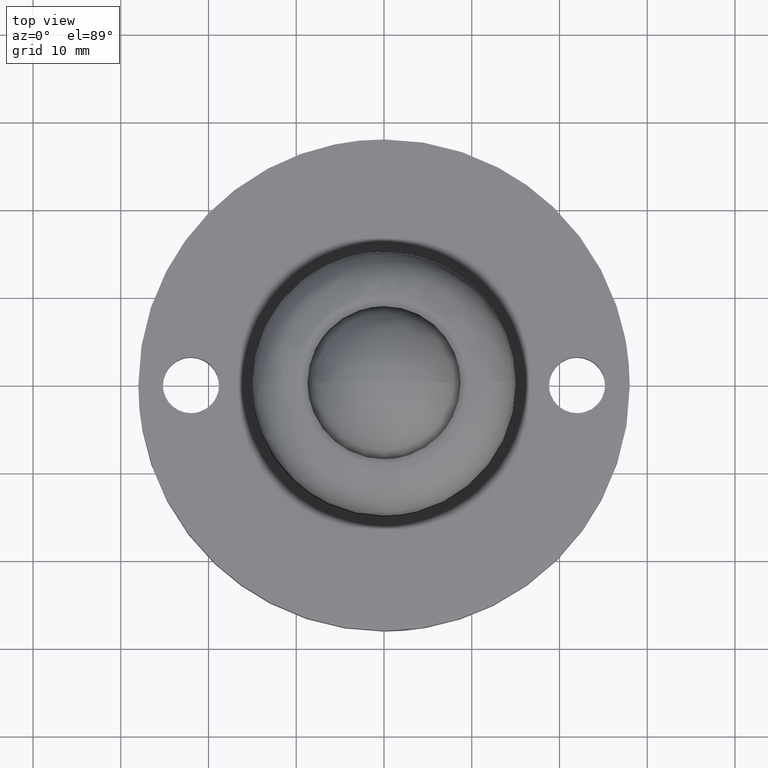
[diagram: clean part render]
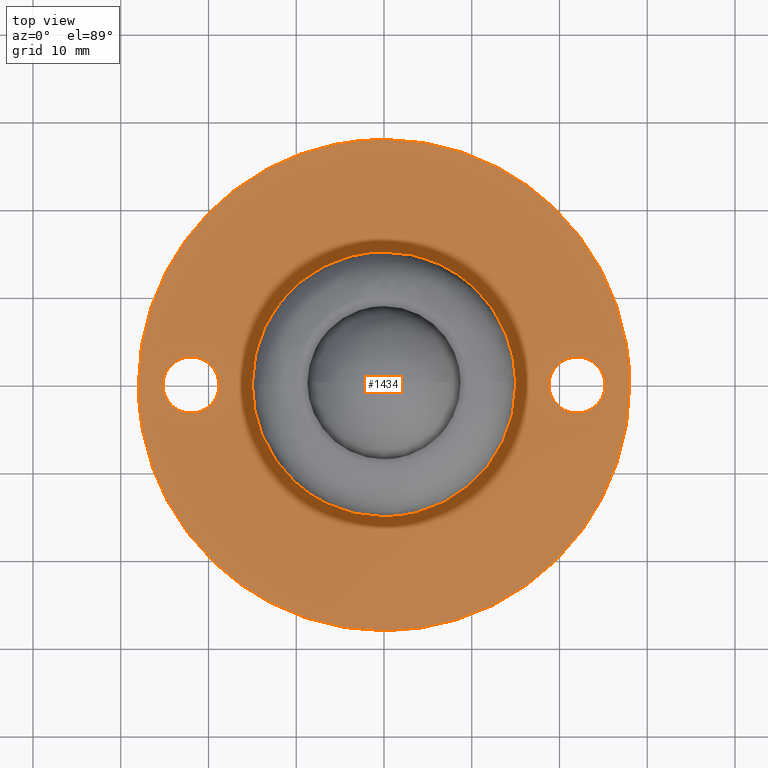
[diagram: same view with one face highlighted and labeled with its STEP entity id]
A machine part, top view. The second image highlights one B-rep face of the part: STEP entity #1434.
In plain terms, the highlighted face is a freeform B-spline surface patch.
Its self-contained STEP definition (entity closure, byte-faithful):
#1031=CARTESIAN_POINT('',(10.187777206663190,11.009504958492119,6.000000000000091));
#1032=VERTEX_POINT('',#1031);
#1038=CARTESIAN_POINT('',(0.000000514032998,14.999999999999689,6.000000000000091));
#1039=VERTEX_POINT('',#1038);
#1040=CARTESIAN_POINT('',(0.000000514032998,14.999999999999689,6.000000000000091));
#1041=CARTESIAN_POINT('',(1.049993559862609,15.000148270109950,6.000000000000098));
#1042=CARTESIAN_POINT('',(2.683226454162662,14.827802878499710,6.000000000000090));
#1043=CARTESIAN_POINT('',(4.711468354141272,14.270011249596291,6.000000000000090));
#1044=CARTESIAN_POINT('',(6.451443818733820,13.588542306655800,6.000000000000137));
#1045=CARTESIAN_POINT('',(8.298799035759691,12.575343320865130,6.000000000000028));
#1046=CARTESIAN_POINT('',(9.588416763761213,11.564200495572170,6.000000000000120));
#1047=CARTESIAN_POINT('',(10.187777206663190,11.009504958492119,6.000000000000091));
#1048=B_SPLINE_CURVE_WITH_KNOTS('',3,(#1040,#1041,#1042,#1043,#1044,#1045,#1046,#1047),.UNSPECIFIED.,.F.,.U.,(4,1,1,1,1,4),(0.000000010242440,3.149943769026443,4.899910382924300,6.299882818494707,8.749840359496206,11.199793191181600),.UNSPECIFIED.);
#1049=EDGE_CURVE('',#1039,#1032,#1048,.T.);
#1051=CARTESIAN_POINT('',(-14.999999999999700,0.0,6.000000000000091));
#1052=VERTEX_POINT('',#1051);
#1053=CARTESIAN_POINT('',(-14.999999999999700,0.0,6.000000000000091));
#1054=CARTESIAN_POINT('',(-15.000096546897820,0.889716477495457,6.000000000000061));
#1055=CARTESIAN_POINT('',(-14.882250914167710,2.208895577811874,6.000000000000136));
#1056=CARTESIAN_POINT('',(-14.438202870833370,4.186382514948534,6.000000000000028));
#1057=CARTESIAN_POINT('',(-13.772032394529759,6.103873490408838,6.000000000000184));
#1058=CARTESIAN_POINT('',(-12.793637921509809,7.920883824401135,6.000000000000008));
#1059=CARTESIAN_POINT('',(-11.655325033743731,9.485472362275043,6.000000000000172));
#1060=CARTESIAN_POINT('',(-10.441851644169031,10.832712208490239,5.999999999999961));
#1061=CARTESIAN_POINT('',(-8.915437344814075,12.125074830185181,6.000000000000152));
#1062=CARTESIAN_POINT('',(-7.093751090324996,13.270838889359720,6.000000000000068));
#1063=CARTESIAN_POINT('',(-5.410942552329037,14.029157939509689,6.000000000000070));
#1064=CARTESIAN_POINT('',(-3.740462036835126,14.552699248653321,6.000000000000110));
#1065=CARTESIAN_POINT('',(-2.024839954780946,14.904923558304850,6.000000000000078));
#1066=CARTESIAN_POINT('',(-0.736309194944582,15.000042318793380,6.000000000000100));
#1067=CARTESIAN_POINT('',(0.000000514032998,14.999999999999689,6.000000000000091));
#1068=B_SPLINE_CURVE_WITH_KNOTS('',3,(#1053,#1054,#1055,#1056,#1057,#1058,#1059,#1060,#1061,#1062,#1063,#1064,#1065,#1066,#1067),.UNSPECIFIED.,.F.,.U.,(4,1,1,1,1,1,1,1,1,1,1,1,4),(0.000000042434699,2.669124016154338,3.957668689044034,6.074574935339655,8.743717676309601,10.124306067827129,11.873004087740471,14.173986027280151,16.106815966073761,18.315760848068251,19.696346942626239,21.353056327259210,23.561982153494270),.UNSPECIFIED.);
#1069=EDGE_CURVE('',#1052,#1039,#1068,.T.);
#1071=CARTESIAN_POINT('',(-10.187777206663080,-11.009504958492011,6.000000000000091));
#1072=VERTEX_POINT('',#1071);
#1073=CARTESIAN_POINT('',(-10.187777206663080,-11.009504958492011,6.000000000000091));
#1074=CARTESIAN_POINT('',(-10.778536760981259,-10.462916927972740,6.000000000000101));
#1075=CARTESIAN_POINT('',(-11.631194055360719,-9.535793906577354,6.000000000000085));
#1076=CARTESIAN_POINT('',(-12.733008748195880,-7.986251307731281,6.000000000000106));
#1077=CARTESIAN_POINT('',(-13.471392565912970,-6.661988642934874,6.000000000000057));
#1078=CARTESIAN_POINT('',(-14.253869133259620,-4.823867949856352,6.000000000000095));
#1079=CARTESIAN_POINT('',(-14.842903739276380,-2.672027324624543,6.000000000000165));
#1080=CARTESIAN_POINT('',(-15.000059692733670,-0.869215143922100,6.000000000000036));
#1081=CARTESIAN_POINT('',(-14.999999999999700,0.0,6.000000000000091));
#1082=B_SPLINE_CURVE_WITH_KNOTS('',3,(#1073,#1074,#1075,#1076,#1077,#1078,#1079,#1080,#1081),.UNSPECIFIED.,.F.,.U.,(4,1,1,1,1,1,4),(0.000000012767073,2.414487620494535,3.766606663179598,5.698210387555625,6.953718377493379,9.754542044631764,12.362188529042671),.UNSPECIFIED.);
#1083=EDGE_CURVE('',#1072,#1052,#1082,.T.);
#1113=CARTESIAN_POINT('',(-0.000000514032385,-14.999999999999689,6.000000000000091));
#1114=VERTEX_POINT('',#1113);
#1115=CARTESIAN_POINT('',(-0.000000514032385,-14.999999999999689,6.000000000000091));
#1116=CARTESIAN_POINT('',(-0.612486380762245,-15.000007512640501,6.000000000000085));
#1117=CARTESIAN_POINT('',(-2.041632659957544,-14.912391503870349,6.000000000000096));
#1118=CARTESIAN_POINT('',(-4.104840186136603,-14.485224483817150,6.000000000000114));
#1119=CARTESIAN_POINT('',(-6.271835620210035,-13.687035738509350,5.999999999999959));
#1120=CARTESIAN_POINT('',(-8.298802825095629,-12.575349904580261,6.000000000000405));
#1121=CARTESIAN_POINT('',(-9.588416002722303,-11.564199267907529,5.999999999999914));
#1122=CARTESIAN_POINT('',(-10.187777206663080,-11.009504958492011,6.000000000000091));
#1123=B_SPLINE_CURVE_WITH_KNOTS('',3,(#1115,#1116,#1117,#1118,#1119,#1120,#1121,#1122),.UNSPECIFIED.,.F.,.U.,(4,1,1,1,1,4),(0.000000010247307,1.837463576933532,4.287428578647943,6.299882818497271,8.749840359497647,11.199793191182140),.UNSPECIFIED.);
#1124=EDGE_CURVE('',#1114,#1072,#1123,.T.);
#1126=CARTESIAN_POINT('',(14.999999999999700,0.0,6.000000000000091));
#1127=VERTEX_POINT('',#1126);
#1128=CARTESIAN_POINT('',(14.999999999999700,0.0,6.000000000000091));
#1129=CARTESIAN_POINT('',(15.000074989132790,-0.859028561157862,6.000000000000092));
#1130=CARTESIAN_POINT('',(14.873135216475511,-2.331619973652520,6.000000000000092));
#1131=CARTESIAN_POINT('',(14.411484289227801,-4.275486703482938,6.000000000000091));
#1132=CARTESIAN_POINT('',(13.774749252262369,-6.038015752824640,6.000000000000098));
#1133=CARTESIAN_POINT('',(12.850795486046691,-7.845957132644837,6.000000000000031));
#1134=CARTESIAN_POINT('',(11.522617060220361,-9.695436405983568,6.000000000000297));
#1135=CARTESIAN_POINT('',(9.992102601258972,-11.254362318997190,5.999999999999572));
#1136=CARTESIAN_POINT('',(8.429884911336441,-12.450521420028830,6.000000000001021));
#1137=CARTESIAN_POINT('',(6.975045998450100,-13.310414503479890,5.999999999998920));
#1138=CARTESIAN_POINT('',(5.355305826043135,-14.052333010226111,6.000000000000621));
#1139=CARTESIAN_POINT('',(3.067853891443439,-14.777058512150679,5.999999999999691));
#1140=CARTESIAN_POINT('',(1.165848423785105,-15.000278523035799,6.000000000000265));
#1141=CARTESIAN_POINT('',(-0.000000514032385,-14.999999999999689,6.000000000000091));
#1142=B_SPLINE_CURVE_WITH_KNOTS('',3,(#1128,#1129,#1130,#1131,#1132,#1133,#1134,#1135,#1136,#1137,#1138,#1139,#1140,#1141),.UNSPECIFIED.,.F.,.U.,(4,1,1,1,1,1,1,1,1,1,1,4),(0.000000042430347,2.577074003765791,4.417864152545988,5.982535173357384,8.191481220354053,10.492469042058600,12.793394615243740,14.726222933293659,16.382934603020232,17.855565148970069,20.064513218020121,23.561982153493940),.UNSPECIFIED.);
#1143=EDGE_CURVE('',#1127,#1114,#1142,.T.);
#1145=CARTESIAN_POINT('',(10.187777206663190,11.009504958492119,6.000000000000091));
#1146=CARTESIAN_POINT('',(10.825793576460260,10.419190775720940,6.000000000000093));
#1147=CARTESIAN_POINT('',(12.042248791890410,9.079397211945965,6.000000000000076));
#1148=CARTESIAN_POINT('',(13.512198221835259,6.718989046687209,6.000000000000124));
#1149=CARTESIAN_POINT('',(14.475388324627840,4.213197168492525,6.000000000000032));
#1150=CARTESIAN_POINT('',(14.921575609628221,1.931588104744306,6.000000000000221));
#1151=CARTESIAN_POINT('',(15.000008868001130,0.579473644619647,5.999999999999924));
#1152=CARTESIAN_POINT('',(14.999999999999700,0.0,6.000000000000091));
#1153=B_SPLINE_CURVE_WITH_KNOTS('',3,(#1145,#1146,#1147,#1148,#1149,#1150,#1151,#1152),.UNSPECIFIED.,.F.,.U.,(4,1,1,1,1,4),(0.000000012767995,2.607646497180639,5.408470164318436,8.305842821939400,10.623762905842790,12.362188529042729),.UNSPECIFIED.);
#1154=EDGE_CURVE('',#1032,#1127,#1153,.T.);
#1163=CARTESIAN_POINT('',(-30.797199891461140,-30.797199891461140,6.000000000000100));
#1164=CARTESIAN_POINT('',(30.797201393498181,-30.797199891461140,6.000000000000100));
#1165=CARTESIAN_POINT('',(-30.797199891461140,30.797201393498181,6.000000000000100));
#1166=CARTESIAN_POINT('',(30.797201393498181,30.797201393498181,6.000000000000100));
#1167=B_SPLINE_SURFACE_WITH_KNOTS('',1,1,((#1163,#1165),(#1164,#1166)),.UNSPECIFIED.,.F.,.F.,.U.,(2,2),(2,2),(0.0,61.594401284959318),(0.0,61.594401284959318),.UNSPECIFIED.);
#1168=CARTESIAN_POINT('',(-19.273928130718851,-20.310482377626691,6.000000000000110));
#1169=VERTEX_POINT('',#1168);
#1170=CARTESIAN_POINT('',(-28.0,0.0,6.000000000000110));
#1171=VERTEX_POINT('',#1170);
#1172=CARTESIAN_POINT('',(-19.273928130718851,-20.310482377626691,6.000000000000110));
#1173=CARTESIAN_POINT('',(-20.304205358195869,-19.332891626585539,6.000000000000108));
#1174=CARTESIAN_POINT('',(-21.817281291517691,-17.660535789965682,6.000000000000124));
#1175=CARTESIAN_POINT('',(-23.833775155955319,-14.806013870023900,6.000000000000116));
#1176=CARTESIAN_POINT('',(-25.323351533662439,-12.105546433060100,6.000000000000110));
#1177=CARTESIAN_POINT('',(-26.565414666658640,-9.027967881024594,6.000000000000108));
#1178=CARTESIAN_POINT('',(-27.347484216291409,-6.230820677136088,6.000000000000106));
#1179=CARTESIAN_POINT('',(-27.872230779366589,-3.195578352586604,6.000000000000145));
#1180=CARTESIAN_POINT('',(-28.000039197746329,-1.183551083948824,6.000000000000031));
#1181=CARTESIAN_POINT('',(-28.0,0.0,6.000000000000110));
#1182=B_SPLINE_CURVE_WITH_KNOTS('',3,(#1172,#1173,#1174,#1175,#1176,#1177,#1178,#1179,#1180,#1181),.UNSPECIFIED.,.F.,.U.,(4,1,1,1,1,1,1,4),(4.495252E-009,4.260790085154824,6.746254458246442,10.474460569322151,13.492504749647610,16.688101663096969,19.173571085288451,22.724224909126718),.UNSPECIFIED.);
#1183=EDGE_CURVE('',#1169,#1171,#1182,.T.);
#1184=ORIENTED_EDGE('',*,*,#1183,.F.);
#1185=CARTESIAN_POINT('',(0.0,-28.0,6.000000000000110));
#1186=VERTEX_POINT('',#1185);
#1187=CARTESIAN_POINT('',(0.0,-28.0,6.000000000000110));
#1188=CARTESIAN_POINT('',(-1.273272756338156,-28.000045014123359,6.000000000000109));
#1189=CARTESIAN_POINT('',(-3.985896736180282,-27.814696475741041,6.000000000000116));
#1190=CARTESIAN_POINT('',(-7.730061789684950,-27.002848322077789,6.000000000000097));
#1191=CARTESIAN_POINT('',(-11.220473785326821,-25.728882692686440,6.000000000000084));
#1192=CARTESIAN_POINT('',(-14.135886279950119,-24.242272144283440,6.000000000000151));
#1193=CARTESIAN_POINT('',(-16.858855188158099,-22.430060242734768,6.000000000000036));
#1194=CARTESIAN_POINT('',(-18.470818302859989,-21.072643694672202,6.000000000000177));
#1195=CARTESIAN_POINT('',(-19.273928130718851,-20.310482377626691,6.000000000000110));
#1196=B_SPLINE_CURVE_WITH_KNOTS('',3,(#1187,#1188,#1189,#1190,#1191,#1192,#1193,#1194,#1195),.UNSPECIFIED.,.F.,.U.,(4,1,1,1,1,1,4),(5.234206E-009,3.819822314806416,8.137887611719680,11.459454651104700,14.947128572263340,17.936562622358760,21.258141466555099),.UNSPECIFIED.);
#1197=EDGE_CURVE('',#1186,#1169,#1196,.T.);
#1198=ORIENTED_EDGE('',*,*,#1197,.F.);
#1199=CARTESIAN_POINT('',(28.0,0.0,6.000000000000110));
#1200=VERTEX_POINT('',#1199);
#1201=CARTESIAN_POINT('',(28.0,0.0,6.000000000000110));
#1202=CARTESIAN_POINT('',(28.000076249837988,-1.374443402842602,6.000000000000105));
#1203=CARTESIAN_POINT('',(27.822531943628391,-3.779703144594035,6.000000000000131));
#1204=CARTESIAN_POINT('',(27.188107891370880,-6.869826014397530,6.000000000000088));
#1205=CARTESIAN_POINT('',(26.381429841663248,-9.499990134449954,6.000000000000124));
#1206=CARTESIAN_POINT('',(25.205217506865569,-12.364641123564359,6.000000000000084));
#1207=CARTESIAN_POINT('',(23.450359889791049,-15.462409899912069,6.000000000000176));
#1208=CARTESIAN_POINT('',(21.391879244739979,-18.150661715067589,6.000000000000097));
#1209=CARTESIAN_POINT('',(19.138923898207349,-20.517000665945499,6.000000000000112));
#1210=CARTESIAN_POINT('',(16.328139413687659,-22.882267896264018,6.000000000000114));
#1211=CARTESIAN_POINT('',(12.987948747120541,-24.912216936348859,6.000000000000108));
#1212=CARTESIAN_POINT('',(9.508591224995064,-26.403587347672520,6.000000000000117));
#1213=CARTESIAN_POINT('',(6.373189358608293,-27.333763720096499,6.000000000000088));
#1214=CARTESIAN_POINT('',(3.149763346632095,-27.882857546572680,6.000000000000195));
#1215=CARTESIAN_POINT('',(1.030828756229254,-28.000022687795880,5.999999999999764));
#1216=CARTESIAN_POINT('',(0.0,-28.0,6.000000000000110));
#1217=B_SPLINE_CURVE_WITH_KNOTS('',3,(#1201,#1202,#1203,#1204,#1205,#1206,#1207,#1208,#1209,#1210,#1211,#1212,#1213,#1214,#1215,#1216),.UNSPECIFIED.,.F.,.U.,(4,1,1,1,1,1,1,1,1,1,1,1,1,4),(0.000000013098202,4.123326911583426,7.215847821432249,9.449332906309564,12.370044910812609,16.493394751371351,20.101326401665119,22.506580174208398,26.286321359345589,31.096904363942741,34.189417934214489,37.625542341849901,40.889876448166540,43.982366145714813),.UNSPECIFIED.);
#1218=EDGE_CURVE('',#1200,#1186,#1217,.T.);
#1219=ORIENTED_EDGE('',*,*,#1218,.F.);
#1220=CARTESIAN_POINT('',(19.273928130718851,20.310482377626691,6.000000000000110));
#1221=VERTEX_POINT('',#1220);
#1222=CARTESIAN_POINT('',(19.273928130718851,20.310482377626691,6.000000000000110));
#1223=CARTESIAN_POINT('',(20.218344450665100,19.414354821185761,6.000000000000111));
#1224=CARTESIAN_POINT('',(21.741302241059799,17.752399976998412,6.000000000000104));
#1225=CARTESIAN_POINT('',(23.535002146494321,15.247122862021531,6.000000000000128));
#1226=CARTESIAN_POINT('',(24.992965224628289,12.737305890199581,6.000000000000087));
#1227=CARTESIAN_POINT('',(26.206128323567722,10.032679698480230,6.000000000000171));
#1228=CARTESIAN_POINT('',(27.103014224652590,7.208494259070555,6.000000000000010));
#1229=CARTESIAN_POINT('',(27.804361690636320,3.905685441720465,6.000000000000202));
#1230=CARTESIAN_POINT('',(28.000132324409300,1.538626680231457,6.000000000000074));
#1231=CARTESIAN_POINT('',(28.0,0.0,6.000000000000110));
#1232=B_SPLINE_CURVE_WITH_KNOTS('',3,(#1222,#1223,#1224,#1225,#1226,#1227,#1228,#1229,#1230,#1231),.UNSPECIFIED.,.F.,.U.,(4,1,1,1,1,1,1,4),(4.488633E-009,3.905721687732147,6.746254458241012,9.231720163970364,12.604830427692990,15.622902537468301,18.108366910560498,22.724224909126772),.UNSPECIFIED.);
#1233=EDGE_CURVE('',#1221,#1200,#1232,.T.);
#1234=ORIENTED_EDGE('',*,*,#1233,.F.);
#1235=CARTESIAN_POINT('',(0.0,28.0,6.000000000000110));
#1236=VERTEX_POINT('',#1235);
#1237=CARTESIAN_POINT('',(0.0,28.0,6.000000000000110));
#1238=CARTESIAN_POINT('',(0.941111651387859,28.000006789617199,6.000000000000110));
#1239=CARTESIAN_POINT('',(3.100143589932317,27.891085386310170,6.000000000000116));
#1240=CARTESIAN_POINT('',(5.999995466748029,27.405002531464842,6.000000000000102));
#1241=CARTESIAN_POINT('',(8.774593310905019,26.628570749285451,6.000000000000116));
#1242=CARTESIAN_POINT('',(11.314455539183751,25.667314383418290,6.000000000000108));
#1243=CARTESIAN_POINT('',(13.643062632865290,24.497274436899040,6.000000000000110));
#1244=CARTESIAN_POINT('',(16.416392173419069,22.767990710947618,6.000000000000116));
#1245=CARTESIAN_POINT('',(18.149635937226190,21.377590790938822,6.000000000000101));
#1246=CARTESIAN_POINT('',(19.273928130718851,20.310482377626691,6.000000000000110));
#1247=B_SPLINE_CURVE_WITH_KNOTS('',3,(#1237,#1238,#1239,#1240,#1241,#1242,#1243,#1244,#1245,#1246),.UNSPECIFIED.,.F.,.U.,(4,1,1,1,1,1,1,4),(5.233609E-009,2.823341509242972,6.477090341870374,8.802207740370802,11.459454651104700,14.614971963523480,16.607924951949158,21.258141466555092),.UNSPECIFIED.);
#1248=EDGE_CURVE('',#1236,#1221,#1247,.T.);
#1249=ORIENTED_EDGE('',*,*,#1248,.F.);
#1250=CARTESIAN_POINT('',(-28.0,0.0,6.000000000000110));
#1251=CARTESIAN_POINT('',(-28.000260458477850,1.832612593338883,6.000000000000126));
#1252=CARTESIAN_POINT('',(-27.700886509838750,4.867746958256638,6.000000000000091));
#1253=CARTESIAN_POINT('',(-26.739071434546741,8.471808341525636,6.000000000000125));
#1254=CARTESIAN_POINT('',(-25.663367961495371,11.312244194017580,6.000000000000108));
#1255=CARTESIAN_POINT('',(-24.542161145571871,13.574174503207040,6.000000000000113));
#1256=CARTESIAN_POINT('',(-22.963323909531780,16.101551624993739,6.000000000000128));
#1257=CARTESIAN_POINT('',(-20.897149473935471,18.783081856724451,6.000000000000020));
#1258=CARTESIAN_POINT('',(-18.174475635355460,21.423456204258521,6.000000000000366));
#1259=CARTESIAN_POINT('',(-15.205495475913549,23.583221880065601,5.999999999999673));
#1260=CARTESIAN_POINT('',(-12.760155805169889,24.968470585289150,6.000000000000737));
#1261=CARTESIAN_POINT('',(-10.252270919965181,26.098619548601128,5.999999999999457));
#1262=CARTESIAN_POINT('',(-7.920104759209994,26.900918249599471,6.000000000000414));
#1263=CARTESIAN_POINT('',(-4.409597478613057,27.746046060151951,5.999999999999876));
#1264=CARTESIAN_POINT('',(-1.832617587992536,28.000274013651580,6.000000000000219));
#1265=CARTESIAN_POINT('',(0.0,28.0,6.000000000000110));
#1266=B_SPLINE_CURVE_WITH_KNOTS('',3,(#1250,#1251,#1252,#1253,#1254,#1255,#1256,#1257,#1258,#1259,#1260,#1261,#1262,#1263,#1264,#1265),.UNSPECIFIED.,.F.,.U.,(4,1,1,1,1,1,1,1,1,1,1,1,1,4),(0.000000013091814,5.497783715431559,9.105718865182347,11.167398394474921,14.603521507796991,16.665205450046670,20.101326401661851,24.740058734813100,28.004385357788099,31.096904363941899,33.158581557590729,36.251096946974727,38.484586159532853,43.982366145714842),.UNSPECIFIED.);
#1267=EDGE_CURVE('',#1171,#1236,#1266,.T.);
#1268=ORIENTED_EDGE('',*,*,#1267,.F.);
#1269=EDGE_LOOP('',(#1184,#1198,#1219,#1234,#1249,#1268));
#1270=FACE_OUTER_BOUND('',#1269,.T.);
#1271=ORIENTED_EDGE('',*,*,#1069,.T.);
#1272=ORIENTED_EDGE('',*,*,#1049,.T.);
#1273=ORIENTED_EDGE('',*,*,#1154,.T.);
#1274=ORIENTED_EDGE('',*,*,#1143,.T.);
#1275=ORIENTED_EDGE('',*,*,#1124,.T.);
#1276=ORIENTED_EDGE('',*,*,#1083,.T.);
#1277=EDGE_LOOP('',(#1271,#1272,#1273,#1274,#1275,#1276));
#1278=FACE_BOUND('',#1277,.T.);
#1279=CARTESIAN_POINT('',(-22.000000550116390,-3.199999999999953,6.000000000000120));
#1280=VERTEX_POINT('',#1279);
#1281=CARTESIAN_POINT('',(-25.199999999999999,0.0,6.000000000000120));
#1282=VERTEX_POINT('',#1281);
#1283=CARTESIAN_POINT('',(-22.000000550116390,-3.199999999999953,6.000000000000120));
#1284=CARTESIAN_POINT('',(-22.235623982032511,-3.200047672389363,6.000000000000129));
#1285=CARTESIAN_POINT('',(-22.667570137313731,-3.152061701360052,6.000000000000110));
#1286=CARTESIAN_POINT('',(-23.255415522132889,-2.961874168691565,6.000000000000126));
#1287=CARTESIAN_POINT('',(-23.730476172073029,-2.707925507129756,6.000000000000127));
#1288=CARTESIAN_POINT('',(-24.179648145211679,-2.366188629999396,6.000000000000113));
#1289=CARTESIAN_POINT('',(-24.606797964592499,-1.900741229257517,6.000000000000123));
#1290=CARTESIAN_POINT('',(-24.915383019344471,-1.363666965415456,6.000000000000126));
#1291=CARTESIAN_POINT('',(-25.141281851550922,-0.719899773238765,6.000000000000167));
#1292=CARTESIAN_POINT('',(-25.200094490099250,-0.287987507467571,6.000000000000060));
#1293=CARTESIAN_POINT('',(-25.199999999999999,0.0,6.000000000000120));
#1294=B_SPLINE_CURVE_WITH_KNOTS('',3,(#1283,#1284,#1285,#1286,#1287,#1288,#1289,#1290,#1291,#1292,#1293),.UNSPECIFIED.,.F.,.U.,(4,1,1,1,1,1,1,1,4),(0.000000092687332,0.706860651052307,1.295915612768479,1.845712362775454,2.316949366713535,2.984512229079095,3.730663923159779,4.162646402294209,5.026579475150330),.UNSPECIFIED.);
#1295=EDGE_CURVE('',#1280,#1282,#1294,.T.);
#1296=ORIENTED_EDGE('',*,*,#1295,.T.);
#1297=CARTESIAN_POINT('',(-24.321197878901248,2.202734556864370,6.000000000000120));
#1298=VERTEX_POINT('',#1297);
#1299=CARTESIAN_POINT('',(-25.199999999999999,0.0,6.000000000000120));
#1300=CARTESIAN_POINT('',(-25.200174439990850,0.341667891521745,6.000000000000124));
#1301=CARTESIAN_POINT('',(-25.105884564337920,0.923620503602940,6.000000000000121));
#1302=CARTESIAN_POINT('',(-24.763845077055318,1.663372445063896,6.000000000000123));
#1303=CARTESIAN_POINT('',(-24.478003476896681,2.037537979372138,6.000000000000122));
#1304=CARTESIAN_POINT('',(-24.321197878901248,2.202734556864370,6.000000000000120));
#1305=B_SPLINE_CURVE_WITH_KNOTS('',3,(#1299,#1300,#1301,#1302,#1303,#1304),.UNSPECIFIED.,.F.,.U.,(4,1,1,4),(0.000000021496748,1.024951523213040,1.746210648800132,2.429512524075035),.UNSPECIFIED.);
#1306=EDGE_CURVE('',#1282,#1298,#1305,.T.);
#1307=ORIENTED_EDGE('',*,*,#1306,.T.);
#1308=CARTESIAN_POINT('',(-21.999999449883660,3.199999999999953,6.000000000000120));
#1309=VERTEX_POINT('',#1308);
#1310=CARTESIAN_POINT('',(-24.321197878901248,2.202734556864370,6.000000000000120));
#1311=CARTESIAN_POINT('',(-24.060675036414249,2.477692310924152,6.000000000000114));
#1312=CARTESIAN_POINT('',(-23.540132180034661,2.859857901204319,6.000000000000125));
#1313=CARTESIAN_POINT('',(-22.716880053001759,3.147305279161889,6.000000000000120));
#1314=CARTESIAN_POINT('',(-22.229947574658478,3.200031210340854,6.000000000000132));
#1315=CARTESIAN_POINT('',(-21.999999449883660,3.199999999999953,6.000000000000120));
#1316=B_SPLINE_CURVE_WITH_KNOTS('',3,(#1310,#1311,#1312,#1313,#1314,#1315),.UNSPECIFIED.,.F.,.U.,(4,1,1,4),(0.000000026464828,1.136229705337346,1.907220816321334,2.597067808467242),.UNSPECIFIED.);
#1317=EDGE_CURVE('',#1298,#1309,#1316,.T.);
#1318=ORIENTED_EDGE('',*,*,#1317,.T.);
#1319=CARTESIAN_POINT('',(-18.800000000000001,0.0,6.000000000000120));
#1320=VERTEX_POINT('',#1319);
#1321=CARTESIAN_POINT('',(-21.999999449883660,3.199999999999953,6.000000000000120));
#1322=CARTESIAN_POINT('',(-21.777475011814271,3.200028143381232,6.000000000000112));
#1323=CARTESIAN_POINT('',(-21.293143975610558,3.149308080624654,6.000000000000132));
#1324=CARTESIAN_POINT('',(-20.619683273816090,2.917652176541759,6.000000000000118));
#1325=CARTESIAN_POINT('',(-20.005748221829229,2.534110431582476,6.000000000000108));
#1326=CARTESIAN_POINT('',(-19.534451490279501,2.074220897279012,6.000000000000162));
#1327=CARTESIAN_POINT('',(-19.188084654596810,1.562608996602236,6.000000000000028));
#1328=CARTESIAN_POINT('',(-18.889837182756629,0.889994033784563,6.000000000000246));
#1329=CARTESIAN_POINT('',(-18.799792090390579,0.353459492415545,6.000000000000042));
#1330=CARTESIAN_POINT('',(-18.800000000000001,0.0,6.000000000000120));
#1331=B_SPLINE_CURVE_WITH_KNOTS('',3,(#1321,#1322,#1323,#1324,#1325,#1326,#1327,#1328,#1329,#1330),.UNSPECIFIED.,.F.,.U.,(4,1,1,1,1,1,1,4),(0.000000092690692,0.667577776892043,1.453000897911799,2.120601659794364,2.827446947224749,3.416500546954200,3.966290558102464,5.026579475150346),.UNSPECIFIED.);
#1332=EDGE_CURVE('',#1309,#1320,#1331,.T.);
#1333=ORIENTED_EDGE('',*,*,#1332,.T.);
#1334=CARTESIAN_POINT('',(-19.678802121098769,-2.202734556864362,6.000000000000120));
#1335=VERTEX_POINT('',#1334);
#1336=CARTESIAN_POINT('',(-18.800000000000001,0.0,6.000000000000120));
#1337=CARTESIAN_POINT('',(-18.799703319673579,-0.379667214717487,6.000000000000095));
#1338=CARTESIAN_POINT('',(-18.895698237950079,-0.910889253881395,6.000000000000142));
#1339=CARTESIAN_POINT('',(-19.232060779775850,-1.649864746051446,6.000000000000108));
#1340=CARTESIAN_POINT('',(-19.487117709173891,-2.000849487371298,6.000000000000118));
#1341=CARTESIAN_POINT('',(-19.678802121098769,-2.202734556864362,6.000000000000120));
#1342=B_SPLINE_CURVE_WITH_KNOTS('',3,(#1336,#1337,#1338,#1339,#1340,#1341),.UNSPECIFIED.,.F.,.U.,(4,1,1,4),(0.000000021496578,1.138842045063572,1.594366334068771,2.429512524075028),.UNSPECIFIED.);
#1343=EDGE_CURVE('',#1320,#1335,#1342,.T.);
#1344=ORIENTED_EDGE('',*,*,#1343,.T.);
#1345=CARTESIAN_POINT('',(-19.678802121098769,-2.202734556864362,6.000000000000120));
#1346=CARTESIAN_POINT('',(-19.883580923361549,-2.418656794321952,6.000000000000116));
#1347=CARTESIAN_POINT('',(-20.311185643604581,-2.758706729688967,6.000000000000131));
#1348=CARTESIAN_POINT('',(-21.107347566646300,-3.112772753098642,6.000000000000116));
#1349=CARTESIAN_POINT('',(-21.675352071477771,-3.200156584657804,6.000000000000117));
#1350=CARTESIAN_POINT('',(-22.000000550116390,-3.199999999999953,6.000000000000120));
#1351=B_SPLINE_CURVE_WITH_KNOTS('',3,(#1345,#1346,#1347,#1348,#1349,#1350),.UNSPECIFIED.,.F.,.U.,(4,1,1,4),(0.000000026463812,0.892746749791854,1.623166963173886,2.597067808467278),.UNSPECIFIED.);
#1352=EDGE_CURVE('',#1335,#1280,#1351,.T.);
#1353=ORIENTED_EDGE('',*,*,#1352,.T.);
#1354=EDGE_LOOP('',(#1296,#1307,#1318,#1333,#1344,#1353));
#1355=FACE_BOUND('',#1354,.T.);
#1356=CARTESIAN_POINT('',(21.999999449883610,-3.199999999999953,6.000000000000120));
#1357=VERTEX_POINT('',#1356);
#1358=CARTESIAN_POINT('',(18.800000000000001,0.0,6.000000000000120));
#1359=VERTEX_POINT('',#1358);
#1360=CARTESIAN_POINT('',(21.999999449883610,-3.199999999999953,6.000000000000120));
#1361=CARTESIAN_POINT('',(21.764376856621048,-3.200046132876426,6.000000000000084));
#1362=CARTESIAN_POINT('',(21.319342670956139,-3.150605397179392,6.000000000000180));
#1363=CARTESIAN_POINT('',(20.619891585711741,-2.919640825035650,6.000000000000121));
#1364=CARTESIAN_POINT('',(20.012630588911929,-2.545433842810184,6.000000000000108));
#1365=CARTESIAN_POINT('',(19.482496993653879,-2.015256800580758,6.000000000000115));
#1366=CARTESIAN_POINT('',(19.133674417435071,-1.471802291706424,6.000000000000127));
#1367=CARTESIAN_POINT('',(18.868896874998072,-0.785333879960458,6.000000000000109));
#1368=CARTESIAN_POINT('',(18.799875948409081,-0.301085832548705,6.000000000000156));
#1369=CARTESIAN_POINT('',(18.800000000000001,0.0,6.000000000000120));
#1370=B_SPLINE_CURVE_WITH_KNOTS('',3,(#1360,#1361,#1362,#1363,#1364,#1365,#1366,#1367,#1368,#1369),.UNSPECIFIED.,.F.,.U.,(4,1,1,1,1,1,1,4),(0.000000092699508,0.706860651062203,1.335186861423066,2.199132317074582,2.827446947228212,3.573578699792945,4.123368710852360,5.026579475150247),.UNSPECIFIED.);
#1371=EDGE_CURVE('',#1357,#1359,#1370,.T.);
#1372=ORIENTED_EDGE('',*,*,#1371,.T.);
#1373=CARTESIAN_POINT('',(19.678802121098759,2.202734556864373,6.000000000000121));
#1374=VERTEX_POINT('',#1373);
#1375=CARTESIAN_POINT('',(18.800000000000001,0.0,6.000000000000120));
#1376=CARTESIAN_POINT('',(18.799947614843461,0.253075670799817,6.000000000000120));
#1377=CARTESIAN_POINT('',(18.863341279946070,0.784518851470658,6.000000000000124));
#1378=CARTESIAN_POINT('',(19.156947841528961,1.546655749356773,6.000000000000125));
#1379=CARTESIAN_POINT('',(19.487119403203600,2.000853550755740,6.000000000000121));
#1380=CARTESIAN_POINT('',(19.678802121098759,2.202734556864373,6.000000000000121));
#1381=B_SPLINE_CURVE_WITH_KNOTS('',3,(#1375,#1376,#1377,#1378,#1379,#1380),.UNSPECIFIED.,.F.,.U.,(4,1,1,4),(0.000000021497448,0.759224253779665,1.594366334069011,2.429512524075032),.UNSPECIFIED.);
#1382=EDGE_CURVE('',#1359,#1374,#1381,.T.);
#1383=ORIENTED_EDGE('',*,*,#1382,.T.);
#1384=CARTESIAN_POINT('',(22.000000550116340,3.199999999999953,6.000000000000121));
#1385=VERTEX_POINT('',#1384);
#1386=CARTESIAN_POINT('',(19.678802121098759,2.202734556864373,6.000000000000121));
#1387=CARTESIAN_POINT('',(19.939314128087680,2.477698503661141,6.000000000000134));
#1388=CARTESIAN_POINT('',(20.482022574623048,2.876140947874068,6.000000000000106));
#1389=CARTESIAN_POINT('',(21.310151809165848,3.153598879577034,6.000000000000148));
#1390=CARTESIAN_POINT('',(21.797109433743650,3.200008425052471,6.000000000000091));
#1391=CARTESIAN_POINT('',(22.000000550116340,3.199999999999953,6.000000000000121));
#1392=B_SPLINE_CURVE_WITH_KNOTS('',3,(#1386,#1387,#1388,#1389,#1390,#1391),.UNSPECIFIED.,.F.,.U.,(4,1,1,4),(0.000000026463423,1.136229705336657,1.988380909599693,2.597067808467231),.UNSPECIFIED.);
#1393=EDGE_CURVE('',#1374,#1385,#1392,.T.);
#1394=ORIENTED_EDGE('',*,*,#1393,.T.);
#1395=CARTESIAN_POINT('',(25.199999999999999,0.0,6.000000000000120));
#1396=VERTEX_POINT('',#1395);
#1397=CARTESIAN_POINT('',(22.000000550116340,3.199999999999953,6.000000000000121));
#1398=CARTESIAN_POINT('',(22.222527727452469,3.200035751129239,6.000000000000119));
#1399=CARTESIAN_POINT('',(22.615211198181701,3.158864286138552,6.000000000000126));
#1400=CARTESIAN_POINT('',(23.194330387951322,2.987079630060682,6.000000000000116));
#1401=CARTESIAN_POINT('',(23.699537943709991,2.732782230197081,6.000000000000115));
#1402=CARTESIAN_POINT('',(24.211890511261689,2.342970877902758,6.000000000000102));
#1403=CARTESIAN_POINT('',(24.628032867174149,1.866530877300045,6.000000000000191));
#1404=CARTESIAN_POINT('',(24.916385895630562,1.350022225645961,6.000000000000054));
#1405=CARTESIAN_POINT('',(25.136706757934729,0.746071101120422,6.000000000000178));
#1406=CARTESIAN_POINT('',(25.200121168265252,0.301085442249605,6.000000000000076));
#1407=CARTESIAN_POINT('',(25.199999999999999,0.0,6.000000000000120));
#1408=B_SPLINE_CURVE_WITH_KNOTS('',3,(#1397,#1398,#1399,#1400,#1401,#1402,#1403,#1404,#1405,#1406,#1407),.UNSPECIFIED.,.F.,.U.,(4,1,1,1,1,1,1,1,4),(0.000000092702540,0.667577776901600,1.178103176392233,1.806430605517345,2.356236459408302,3.102329725537302,3.691392778362714,4.123368710852690,5.026579475150267),.UNSPECIFIED.);
#1409=EDGE_CURVE('',#1385,#1396,#1408,.T.);
#1410=ORIENTED_EDGE('',*,*,#1409,.T.);
#1411=CARTESIAN_POINT('',(24.321197878901231,-2.202734556864362,6.000000000000120));
#1412=VERTEX_POINT('',#1411);
#1413=CARTESIAN_POINT('',(25.199999999999999,0.0,6.000000000000120));
#1414=CARTESIAN_POINT('',(25.200330696150949,-0.379670681519071,6.000000000000126));
#1415=CARTESIAN_POINT('',(25.104278290389161,-0.910889100379005,6.000000000000133));
#1416=CARTESIAN_POINT('',(24.767931236298772,-1.649859314813935,6.000000000000093));
#1417=CARTESIAN_POINT('',(24.512893273460239,-2.000854580561299,6.000000000000147));
#1418=CARTESIAN_POINT('',(24.321197878901231,-2.202734556864362,6.000000000000120));
#1419=B_SPLINE_CURVE_WITH_KNOTS('',3,(#1413,#1414,#1415,#1416,#1417,#1418),.UNSPECIFIED.,.F.,.U.,(4,1,1,4),(0.000000021496659,1.138842045063510,1.594366334068756,2.429512524075023),.UNSPECIFIED.);
#1420=EDGE_CURVE('',#1396,#1412,#1419,.T.);
#1421=ORIENTED_EDGE('',*,*,#1420,.T.);
#1422=CARTESIAN_POINT('',(24.321197878901231,-2.202734556864362,6.000000000000120));
#1423=CARTESIAN_POINT('',(24.181547227148389,-2.349919291915317,6.000000000000120));
#1424=CARTESIAN_POINT('',(23.843400681630101,-2.644394971047809,6.000000000000130));
#1425=CARTESIAN_POINT('',(23.319798048101450,-2.935378287426754,6.000000000000108));
#1426=CARTESIAN_POINT('',(22.689813031011070,-3.146499600670857,6.000000000000150));
#1427=CARTESIAN_POINT('',(22.270534688911539,-3.200069173501982,6.000000000000102));
#1428=CARTESIAN_POINT('',(21.999999449883610,-3.199999999999953,6.000000000000120));
#1429=B_SPLINE_CURVE_WITH_KNOTS('',3,(#1422,#1423,#1424,#1425,#1426,#1427,#1428),.UNSPECIFIED.,.F.,.U.,(4,1,1,1,4),(0.000000026461749,0.608686925317984,1.339098461913312,1.785479900434050,2.597067808467282),.UNSPECIFIED.);
#1430=EDGE_CURVE('',#1412,#1357,#1429,.T.);
#1431=ORIENTED_EDGE('',*,*,#1430,.T.);
#1432=EDGE_LOOP('',(#1372,#1383,#1394,#1410,#1421,#1431));
#1433=FACE_BOUND('',#1432,.T.);
#1434=ADVANCED_FACE('',(#1270,#1278,#1355,#1433),#1167,.T.);